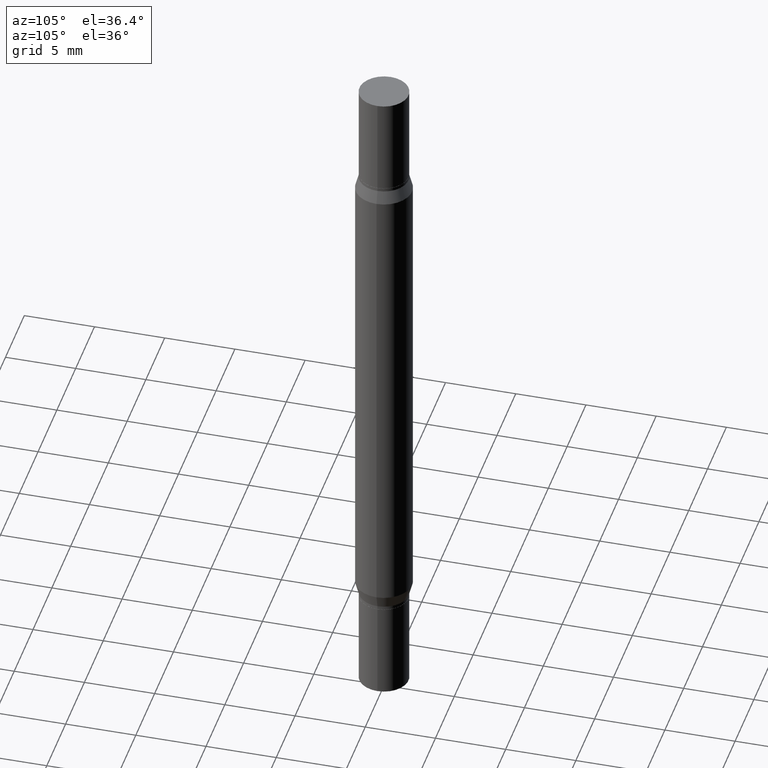
[diagram: clean part render]
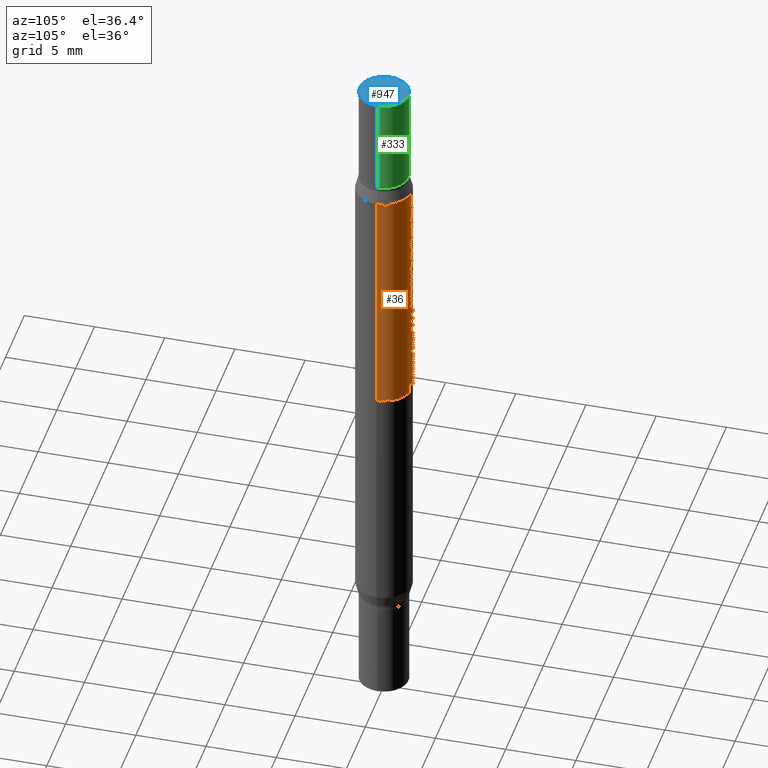
[diagram: same view with three faces highlighted in distinct colors, each labeled with its STEP entity id]
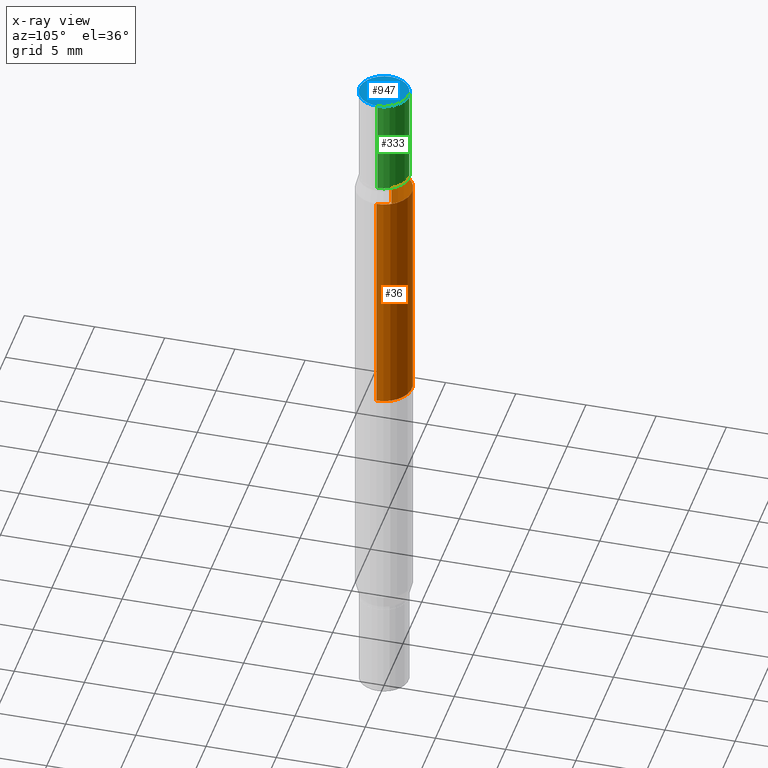
[diagram: x-ray of the same camera — body ghosted, the three highlighted faces saturated]
A machine part, auxiliary view with three faces highlighted in distinct colors.
The next image is the same camera in x-ray (body ghosted, the three faces saturated) — at least one of them is partly hidden behind the body in this view.
Their STEP definitions:

[orange] entity #36 — the highlighted cylindrical surface (edge-blend (fillet) strip) has radius 2.0003 mm, axis along (-0, -0, -1).
#2 = CARTESIAN_POINT ( 'NONE',  ( -0.07875000000000001443, -1.740632076205336930E-15, -0.9842499999999998472 ) ) ;
#28 = EDGE_CURVE ( 'NONE', #843, #916, #488, .T. ) ;
#34 = DIRECTION ( 'NONE',  ( 1.000000000000000000, -6.982962677686267499E-15, 0.000000000000000000 ) ) ;
#36 = ADVANCED_FACE ( 'NONE', ( #53 ), #278, .T. ) ;
#53 = FACE_OUTER_BOUND ( 'NONE', #247, .T. ) ;
#60 = ORIENTED_EDGE ( 'NONE', *, *, #28, .F. ) ;
#94 = CARTESIAN_POINT ( 'NONE',  ( -0.07875000000000001443, -5.850378619788178690E-16, -0.3223607004545533949 ) ) ;
#113 = AXIS2_PLACEMENT_3D ( 'NONE', #473, #715, #800 ) ;
#157 = EDGE_CURVE ( 'NONE', #758, #751, #971, .T. ) ;
#167 = CARTESIAN_POINT ( 'NONE',  ( 0.07875000000000001443, -2.830804604397638560E-15, -0.9842499999999998472 ) ) ;
#203 = AXIS2_PLACEMENT_3D ( 'NONE', #789, #544, #707 ) ;
#216 = AXIS2_PLACEMENT_3D ( 'NONE', #703, #628, #34 ) ;
#245 = VECTOR ( 'NONE', #248, 39.37007874015748143 ) ;
#247 = EDGE_LOOP ( 'NONE', ( #858, #725, #463, #60 ) ) ;
#248 = DIRECTION ( 'NONE',  ( -2.445468806185136877E-29, -3.491805094961123683E-15, -1.000000000000000000 ) ) ;
#278 = CYLINDRICAL_SURFACE ( 'NONE', #113, 0.07875000000000001443 ) ;
#378 = EDGE_CURVE ( 'NONE', #751, #843, #563, .T. ) ;
#463 = ORIENTED_EDGE ( 'NONE', *, *, #629, .T. ) ;
#473 = CARTESIAN_POINT ( 'NONE',  ( 0.000000000000000000, -6.873299672471851415E-15, -1.968499999999999694 ) ) ;
#488 = CIRCLE ( 'NONE', #203, 0.07875000000000001443 ) ;
#544 = DIRECTION ( 'NONE',  ( -0.000000000000000000, -3.491643216902134830E-15, -1.000000000000000000 ) ) ;
#563 = LINE ( 'NONE', #668, #245 ) ;
#628 = DIRECTION ( 'NONE',  ( 2.445468806185136597E-29, 3.491805094961124077E-15, 1.000000000000000000 ) ) ;
#629 = EDGE_CURVE ( 'NONE', #758, #916, #938, .T. ) ;
#668 = CARTESIAN_POINT ( 'NONE',  ( -0.07875000000000001443, -6.333035455147343525E-15, -1.968499999999999694 ) ) ;
#690 = CARTESIAN_POINT ( 'NONE',  ( 0.07875000000000001443, -1.675210390171119696E-15, -0.3223607004545533949 ) ) ;
#703 = CARTESIAN_POINT ( 'NONE',  ( 4.025582307673839975E-29, -1.125302079303325561E-15, -0.3223607004545533949 ) ) ;
#707 = DIRECTION ( 'NONE',  ( 0.000000000000000000, 1.000000000000000000, -3.469013325287952504E-15 ) ) ;
#715 = DIRECTION ( 'NONE',  ( -2.445468806185136597E-29, -3.491805094961124077E-15, -1.000000000000000000 ) ) ;
#725 = ORIENTED_EDGE ( 'NONE', *, *, #157, .F. ) ;
#751 = VERTEX_POINT ( 'NONE', #94 ) ;
#758 = VERTEX_POINT ( 'NONE', #690 ) ;
#768 = CARTESIAN_POINT ( 'NONE',  ( 0.07875000000000001443, -7.423207983339645550E-15, -1.968499999999999694 ) ) ;
#789 = CARTESIAN_POINT ( 'NONE',  ( 2.406952672487720357E-29, -3.436490507756365459E-15, -0.9842499999999998472 ) ) ;
#800 = DIRECTION ( 'NONE',  ( 1.000000000000000000, -6.982962677686273810E-15, 0.000000000000000000 ) ) ;
#843 = VERTEX_POINT ( 'NONE', #2 ) ;
#858 = ORIENTED_EDGE ( 'NONE', *, *, #378, .F. ) ;
#867 = DIRECTION ( 'NONE',  ( -2.445468806185136877E-29, -3.491805094961123683E-15, -1.000000000000000000 ) ) ;
#916 = VERTEX_POINT ( 'NONE', #167 ) ;
#938 = LINE ( 'NONE', #768, #969 ) ;
#969 = VECTOR ( 'NONE', #867, 39.37007874015748143 ) ;
#971 = CIRCLE ( 'NONE', #216, 0.07875000000000001443 ) ;

[blue] entity #947 — the highlighted planar face has unit normal (-0, -0, -1).
#40 = CIRCLE ( 'NONE', #548, 0.06890000000000007230 ) ;
#109 = DIRECTION ( 'NONE',  ( 2.445468806185136597E-29, 3.491805094961124077E-15, 1.000000000000000000 ) ) ;
#175 = EDGE_LOOP ( 'NONE', ( #943, #743 ) ) ;
#179 = DIRECTION ( 'NONE',  ( 1.000000000000000000, -6.982962677686265922E-15, 2.260776888683160832E-33 ) ) ;
#335 = DIRECTION ( 'NONE',  ( 1.000000000000000000, -6.982962677686265922E-15, 0.000000000000000000 ) ) ;
#357 = CARTESIAN_POINT ( 'NONE',  ( -0.06890000000000007230, -8.163773080062677072E-18, 2.731847993664279982E-16 ) ) ;
#383 = CIRCLE ( 'NONE', #475, 0.06890000000000007230 ) ;
#403 = FACE_OUTER_BOUND ( 'NONE', #175, .T. ) ;
#452 = PLANE ( 'NONE',  #831 ) ;
#475 = AXIS2_PLACEMENT_3D ( 'NONE', #714, #109, #335 ) ;
#508 = CARTESIAN_POINT ( 'NONE',  ( 4.813905344975441835E-29, 3.186569591213228268E-19, 2.731847993664263218E-16 ) ) ;
#513 = DIRECTION ( 'NONE',  ( 1.000000000000000000, -6.982962677686265922E-15, 0.000000000000000000 ) ) ;
#524 = VERTEX_POINT ( 'NONE', #769 ) ;
#548 = AXIS2_PLACEMENT_3D ( 'NONE', #508, #583, #513 ) ;
#583 = DIRECTION ( 'NONE',  ( 2.445468806185136597E-29, 3.491805094961124077E-15, 1.000000000000000000 ) ) ;
#677 = CARTESIAN_POINT ( 'NONE',  ( 4.855017685067750029E-29, 5.919386794038814566E-17, 2.731847993664263218E-16 ) ) ;
#694 = EDGE_CURVE ( 'NONE', #793, #524, #383, .T. ) ;
#695 = DIRECTION ( 'NONE',  ( -2.438088387897959208E-29, -3.491805094961123683E-15, -1.000000000000000000 ) ) ;
#714 = CARTESIAN_POINT ( 'NONE',  ( 4.813905344975441835E-29, 3.186569591213228268E-19, 2.731847993664263218E-16 ) ) ;
#743 = ORIENTED_EDGE ( 'NONE', *, *, #694, .T. ) ;
#769 = CARTESIAN_POINT ( 'NONE',  ( 0.06890000000000007230, -4.808074715334629460E-16, 2.731847993664263218E-16 ) ) ;
#793 = VERTEX_POINT ( 'NONE', #357 ) ;
#831 = AXIS2_PLACEMENT_3D ( 'NONE', #677, #695, #179 ) ;
#854 = EDGE_CURVE ( 'NONE', #524, #793, #40, .T. ) ;
#943 = ORIENTED_EDGE ( 'NONE', *, *, #854, .T. ) ;
#947 = ADVANCED_FACE ( 'NONE', ( #403 ), #452, .F. ) ;

[green] entity #333 — the highlighted cylindrical surface (edge-blend (fillet) strip) has radius 1.7501 mm, axis along (-0, -0, -1).
#20 = ORIENTED_EDGE ( 'NONE', *, *, #854, .F. ) ;
#40 = CIRCLE ( 'NONE', #548, 0.06890000000000007230 ) ;
#85 = ORIENTED_EDGE ( 'NONE', *, *, #457, .F. ) ;
#86 = DIRECTION ( 'NONE',  ( 2.445468806185136597E-29, 3.491805094961124077E-15, 1.000000000000000000 ) ) ;
#196 = CARTESIAN_POINT ( 'NONE',  ( 0.06890000000000007230, -1.443148955704749777E-15, -0.2755999999999999006 ) ) ;
#197 = DIRECTION ( 'NONE',  ( -2.445468806185136597E-29, -3.491805094961124077E-15, -1.000000000000000000 ) ) ;
#214 = VECTOR ( 'NONE', #941, 39.37007874015748143 ) ;
#251 = FACE_OUTER_BOUND ( 'NONE', #636, .T. ) ;
#255 = CIRCLE ( 'NONE', #931, 0.06890000000000007230 ) ;
#266 = CYLINDRICAL_SURFACE ( 'NONE', #404, 0.06890000000000007230 ) ;
#284 = ORIENTED_EDGE ( 'NONE', *, *, #929, .T. ) ;
#325 = EDGE_CURVE ( 'NONE', #524, #953, #624, .T. ) ;
#333 = ADVANCED_FACE ( 'NONE', ( #251 ), #266, .T. ) ;
#346 = CARTESIAN_POINT ( 'NONE',  ( -0.06890000000000007230, -8.163773080062737161E-18, -0.2755999999999999006 ) ) ;
#357 = CARTESIAN_POINT ( 'NONE',  ( -0.06890000000000007230, -8.163773080062677072E-18, 2.731847993664279982E-16 ) ) ;
#404 = AXIS2_PLACEMENT_3D ( 'NONE', #531, #197, #576 ) ;
#457 = EDGE_CURVE ( 'NONE', #793, #557, #539, .T. ) ;
#493 = ORIENTED_EDGE ( 'NONE', *, *, #325, .T. ) ;
#508 = CARTESIAN_POINT ( 'NONE',  ( 4.813905344975441835E-29, 3.186569591213228268E-19, 2.731847993664263218E-16 ) ) ;
#513 = DIRECTION ( 'NONE',  ( 1.000000000000000000, -6.982962677686265922E-15, 0.000000000000000000 ) ) ;
#524 = VERTEX_POINT ( 'NONE', #769 ) ;
#531 = CARTESIAN_POINT ( 'NONE',  ( 0.000000000000000000, -6.873299672471851415E-15, -1.968499999999999694 ) ) ;
#539 = LINE ( 'NONE', #763, #879 ) ;
#543 = CARTESIAN_POINT ( 'NONE',  ( 4.139934141990817236E-29, -9.620228272121656440E-16, -0.2755999999999999006 ) ) ;
#548 = AXIS2_PLACEMENT_3D ( 'NONE', #508, #583, #513 ) ;
#557 = VERTEX_POINT ( 'NONE', #346 ) ;
#576 = DIRECTION ( 'NONE',  ( 1.000000000000000000, -6.982962677686258822E-15, 0.000000000000000000 ) ) ;
#583 = DIRECTION ( 'NONE',  ( 2.445468806185136597E-29, 3.491805094961124077E-15, 1.000000000000000000 ) ) ;
#624 = LINE ( 'NONE', #701, #214 ) ;
#636 = EDGE_LOOP ( 'NONE', ( #85, #20, #493, #284 ) ) ;
#701 = CARTESIAN_POINT ( 'NONE',  ( 0.06890000000000007230, -7.354425800964435942E-15, -1.968499999999999694 ) ) ;
#763 = CARTESIAN_POINT ( 'NONE',  ( -0.06890000000000007230, -6.400611360425392691E-15, -1.968499999999999694 ) ) ;
#769 = CARTESIAN_POINT ( 'NONE',  ( 0.06890000000000007230, -4.808074715334629460E-16, 2.731847993664263218E-16 ) ) ;
#793 = VERTEX_POINT ( 'NONE', #357 ) ;
#836 = DIRECTION ( 'NONE',  ( 1.000000000000000000, -6.982962677686265922E-15, 0.000000000000000000 ) ) ;
#853 = DIRECTION ( 'NONE',  ( -2.445468806185136877E-29, -3.491805094961123683E-15, -1.000000000000000000 ) ) ;
#854 = EDGE_CURVE ( 'NONE', #524, #793, #40, .T. ) ;
#879 = VECTOR ( 'NONE', #853, 39.37007874015748143 ) ;
#929 = EDGE_CURVE ( 'NONE', #953, #557, #255, .T. ) ;
#931 = AXIS2_PLACEMENT_3D ( 'NONE', #543, #86, #836 ) ;
#941 = DIRECTION ( 'NONE',  ( -2.445468806185136877E-29, -3.491805094961123683E-15, -1.000000000000000000 ) ) ;
#953 = VERTEX_POINT ( 'NONE', #196 ) ;